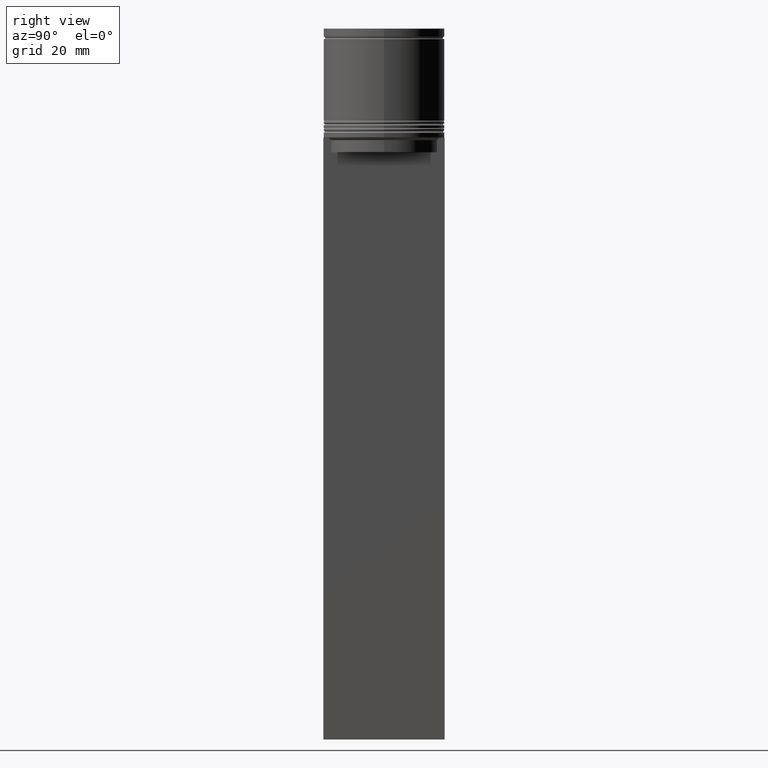
[diagram: clean part render]
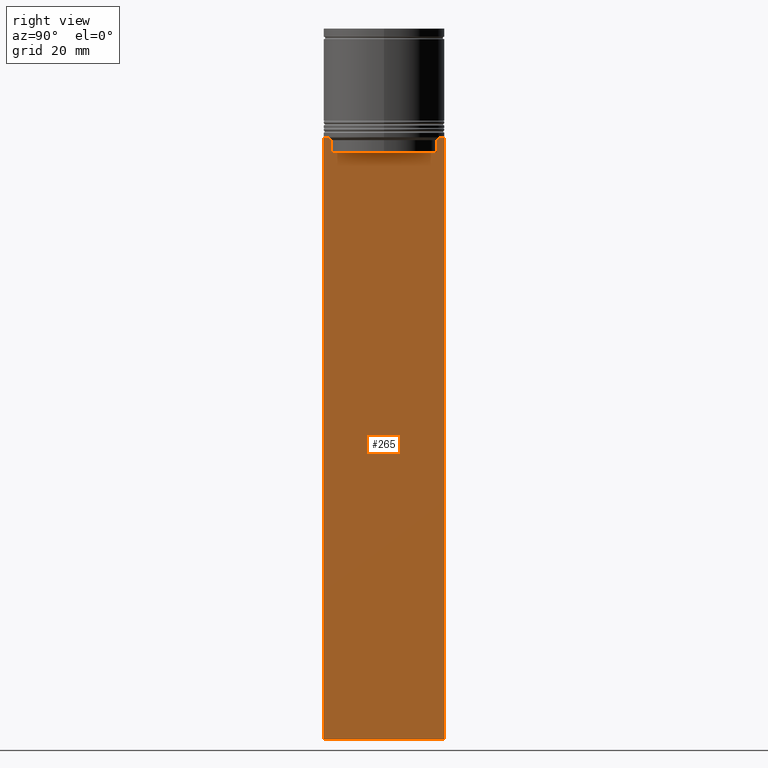
[diagram: same view with one face highlighted and labeled with its STEP entity id]
A machine part, right view. The second image highlights one B-rep face of the part: STEP entity #265.
In plain terms, the highlighted planar face has unit normal (-1, 0, 0).
Its self-contained STEP definition (entity closure, byte-faithful):
#12 = DIRECTION ( 'NONE',  ( 0.000000000000000000, 1.000000000000000000, 0.000000000000000000 ) ) ;
#74 = CARTESIAN_POINT ( 'NONE',  ( 0.5000000000000000000, -12.49999999999999289, -146.5000000000000000 ) ) ;
#92 = EDGE_LOOP ( 'NONE', ( #1369, #1074, #897, #1292, #638, #1140, #94, #900, #1366, #1338, #1872, #295 ) ) ;
#94 = ORIENTED_EDGE ( 'NONE', *, *, #902, .T. ) ;
#96 = DIRECTION ( 'NONE',  ( 0.000000000000000000, 0.000000000000000000, -1.000000000000000000 ) ) ;
#100 = DIRECTION ( 'NONE',  ( 0.000000000000000000, -1.000000000000000000, 0.000000000000000000 ) ) ;
#108 = EDGE_CURVE ( 'NONE', #823, #2001, #1432, .T. ) ;
#117 = CARTESIAN_POINT ( 'NONE',  ( 0.5000000000000000000, -12.49999999999999289, 2.519992006393609874 ) ) ;
#213 = FACE_OUTER_BOUND ( 'NONE', #92, .T. ) ;
#227 = CARTESIAN_POINT ( 'NONE',  ( 0.5000000000000000000, 12.50000000000000711, 2.519992006393609874 ) ) ;
#235 = VERTEX_POINT ( 'NONE', #1020 ) ;
#265 = ADVANCED_FACE ( 'NONE', ( #213 ), #1353, .F. ) ;
#295 = ORIENTED_EDGE ( 'NONE', *, *, #1559, .T. ) ;
#321 = B_SPLINE_CURVE_WITH_KNOTS ( 'NONE', 3,
 ( #1804, #348, #1628, #1317 ),
 .UNSPECIFIED., .F., .F.,
 ( 4, 4 ),
 ( 0.01935560801904635808, 0.02006307108468587813 ),
 .UNSPECIFIED. ) ;
#326 = VECTOR ( 'NONE', #100, 1000.000000000000000 ) ;
#343 = CARTESIAN_POINT ( 'NONE',  ( 0.5000000000000000000, -11.05536450423839412, -22.83333718996392747 ) ) ;
#348 = CARTESIAN_POINT ( 'NONE',  ( 0.5000000000000000000, 11.22219891375843126, -22.66667035472756808 ) ) ;
#355 = VERTEX_POINT ( 'NONE', #957 ) ;
#369 = VERTEX_POINT ( 'NONE', #1426 ) ;
#422 = VECTOR ( 'NONE', #1689, 1000.000000000000000 ) ;
#424 = CARTESIAN_POINT ( 'NONE',  ( 0.5000000000000000000, -12.49999999999999289, -22.50000000000000000 ) ) ;
#430 = EDGE_CURVE ( 'NONE', #1710, #680, #1566, .T. ) ;
#438 = CARTESIAN_POINT ( 'NONE',  ( 0.5000000000000000000, 12.38991525394746596, -22.50000000000000000 ) ) ;
#479 = LINE ( 'NONE', #1125, #627 ) ;
#590 = CARTESIAN_POINT ( 'NONE',  ( 0.5000000000000000000, -11.38902980942626897, -22.50000000000000000 ) ) ;
#627 = VECTOR ( 'NONE', #1775, 1000.000000000000000 ) ;
#638 = ORIENTED_EDGE ( 'NONE', *, *, #1701, .T. ) ;
#680 = VERTEX_POINT ( 'NONE', #74 ) ;
#684 = CARTESIAN_POINT ( 'NONE',  ( 0.5000000000000000000, -12.49999999999999289, -22.50000000000000000 ) ) ;
#713 = LINE ( 'NONE', #1059, #326 ) ;
#746 = LINE ( 'NONE', #1345, #1237 ) ;
#752 = VERTEX_POINT ( 'NONE', #438 ) ;
#765 = DIRECTION ( 'NONE',  ( 0.000000000000000000, 0.000000000000000000, -1.000000000000000000 ) ) ;
#771 = VECTOR ( 'NONE', #1653, 1000.000000000000000 ) ;
#780 = LINE ( 'NONE', #787, #1983 ) ;
#787 = CARTESIAN_POINT ( 'NONE',  ( 0.5000000000000000000, -10.88852607105297032, 0.000000000000000000 ) ) ;
#819 = CARTESIAN_POINT ( 'NONE',  ( 0.5000000000000000000, -12.49999999999999289, -146.5000000000000000 ) ) ;
#823 = VERTEX_POINT ( 'NONE', #1265 ) ;
#897 = ORIENTED_EDGE ( 'NONE', *, *, #1920, .T. ) ;
#900 = ORIENTED_EDGE ( 'NONE', *, *, #1106, .T. ) ;
#902 = EDGE_CURVE ( 'NONE', #2001, #1522, #479, .T. ) ;
#942 = EDGE_CURVE ( 'NONE', #235, #1917, #321, .T. ) ;
#950 = DIRECTION ( 'NONE',  ( -0.000000000000000000, -0.000000000000000000, 1.000000000000000000 ) ) ;
#957 = CARTESIAN_POINT ( 'NONE',  ( 0.5000000000000000000, 10.88852607105296855, -25.50000000000000000 ) ) ;
#989 = CARTESIAN_POINT ( 'NONE',  ( 0.5000000000000000000, -11.38902980942626897, -22.50000000000000000 ) ) ;
#1020 = CARTESIAN_POINT ( 'NONE',  ( 0.5000000000000000000, 11.38902980942626897, -22.50000000000000000 ) ) ;
#1047 = CARTESIAN_POINT ( 'NONE',  ( 0.5000000000000000000, 10.88852607105297032, 0.000000000000000000 ) ) ;
#1049 = CARTESIAN_POINT ( 'NONE',  ( 0.5000000000000000000, -12.49999999999999289, 2.519992006393609874 ) ) ;
#1058 = DIRECTION ( 'NONE',  ( 0.000000000000000000, 0.000000000000000000, 1.000000000000000000 ) ) ;
#1059 = CARTESIAN_POINT ( 'NONE',  ( 0.5000000000000000000, -12.49999999999999289, -22.50000000000000000 ) ) ;
#1074 = ORIENTED_EDGE ( 'NONE', *, *, #942, .T. ) ;
#1106 = EDGE_CURVE ( 'NONE', #1522, #1710, #1651, .T. ) ;
#1125 = CARTESIAN_POINT ( 'NONE',  ( 0.5000000000000000000, -12.49999999999999289, -22.50000000000000000 ) ) ;
#1131 = CARTESIAN_POINT ( 'NONE',  ( 0.5000000000000000000, 12.50000000000000711, -22.50000000000000000 ) ) ;
#1140 = ORIENTED_EDGE ( 'NONE', *, *, #108, .T. ) ;
#1237 = VECTOR ( 'NONE', #1558, 1000.000000000000000 ) ;
#1260 = LINE ( 'NONE', #684, #771 ) ;
#1265 = CARTESIAN_POINT ( 'NONE',  ( 0.5000000000000000000, -10.88852607105297032, -22.99999999999999645 ) ) ;
#1292 = ORIENTED_EDGE ( 'NONE', *, *, #1507, .T. ) ;
#1317 = CARTESIAN_POINT ( 'NONE',  ( 0.5000000000000000000, 10.88852607105297032, -22.99999999999999645 ) ) ;
#1322 = CARTESIAN_POINT ( 'NONE',  ( 0.5000000000000000000, -11.22219891450653151, -22.66667035398018726 ) ) ;
#1338 = ORIENTED_EDGE ( 'NONE', *, *, #1790, .T. ) ;
#1345 = CARTESIAN_POINT ( 'NONE',  ( 0.5000000000000000000, 10.90000000000000924, -25.50000000000000000 ) ) ;
#1353 = PLANE ( 'NONE',  #1670 ) ;
#1366 = ORIENTED_EDGE ( 'NONE', *, *, #430, .T. ) ;
#1369 = ORIENTED_EDGE ( 'NONE', *, *, #1722, .T. ) ;
#1377 = CARTESIAN_POINT ( 'NONE',  ( 0.5000000000000000000, -12.38991525394746596, -22.50000000000000000 ) ) ;
#1426 = CARTESIAN_POINT ( 'NONE',  ( 0.5000000000000000000, -10.88852607105296855, -25.50000000000000000 ) ) ;
#1432 = B_SPLINE_CURVE_WITH_KNOTS ( 'NONE', 3,
 ( #1791, #343, #1322, #989 ),
 .UNSPECIFIED., .F., .F.,
 ( 4, 4 ),
 ( 0.05041323384703231408, 0.05112713601261610619 ),
 .UNSPECIFIED. ) ;
#1492 = EDGE_CURVE ( 'NONE', #1825, #1888, #2026, .T. ) ;
#1499 = DIRECTION ( 'NONE',  ( 0.000000000000000000, -1.000000000000000000, 0.000000000000000000 ) ) ;
#1507 = EDGE_CURVE ( 'NONE', #355, #369, #746, .T. ) ;
#1522 = VERTEX_POINT ( 'NONE', #1377 ) ;
#1534 = DIRECTION ( 'NONE',  ( -1.000000000000000000, 0.000000000000000000, 0.000000000000000000 ) ) ;
#1542 = VECTOR ( 'NONE', #12, 1000.000000000000000 ) ;
#1558 = DIRECTION ( 'NONE',  ( 0.000000000000000000, -1.000000000000000000, 0.000000000000000000 ) ) ;
#1559 = EDGE_CURVE ( 'NONE', #1825, #752, #713, .T. ) ;
#1566 = LINE ( 'NONE', #117, #1773 ) ;
#1628 = CARTESIAN_POINT ( 'NONE',  ( 0.5000000000000000000, 11.05536450345590715, -22.83333719074559554 ) ) ;
#1651 = LINE ( 'NONE', #424, #1678 ) ;
#1653 = DIRECTION ( 'NONE',  ( 0.000000000000000000, -1.000000000000000000, 0.000000000000000000 ) ) ;
#1670 = AXIS2_PLACEMENT_3D ( 'NONE', #1049, #1534, #1058 ) ;
#1678 = VECTOR ( 'NONE', #1499, 1000.000000000000000 ) ;
#1683 = VECTOR ( 'NONE', #96, 1000.000000000000000 ) ;
#1689 = DIRECTION ( 'NONE',  ( 0.000000000000000000, 0.000000000000000000, -1.000000000000000000 ) ) ;
#1701 = EDGE_CURVE ( 'NONE', #369, #823, #780, .T. ) ;
#1704 = CARTESIAN_POINT ( 'NONE',  ( 0.5000000000000000000, 10.88852607105297032, -22.99999999999999645 ) ) ;
#1710 = VERTEX_POINT ( 'NONE', #1758 ) ;
#1722 = EDGE_CURVE ( 'NONE', #752, #235, #1260, .T. ) ;
#1758 = CARTESIAN_POINT ( 'NONE',  ( 0.5000000000000000000, -12.49999999999999289, -22.50000000000000000 ) ) ;
#1773 = VECTOR ( 'NONE', #765, 1000.000000000000000 ) ;
#1775 = DIRECTION ( 'NONE',  ( 0.000000000000000000, -1.000000000000000000, 0.000000000000000000 ) ) ;
#1790 = EDGE_CURVE ( 'NONE', #680, #1888, #1820, .T. ) ;
#1791 = CARTESIAN_POINT ( 'NONE',  ( 0.5000000000000000000, -10.88852607105297032, -22.99999999999999645 ) ) ;
#1804 = CARTESIAN_POINT ( 'NONE',  ( 0.5000000000000000000, 11.38902980942626897, -22.50000000000000000 ) ) ;
#1820 = LINE ( 'NONE', #819, #1542 ) ;
#1825 = VERTEX_POINT ( 'NONE', #1131 ) ;
#1863 = LINE ( 'NONE', #1047, #1683 ) ;
#1872 = ORIENTED_EDGE ( 'NONE', *, *, #1492, .F. ) ;
#1888 = VERTEX_POINT ( 'NONE', #2009 ) ;
#1917 = VERTEX_POINT ( 'NONE', #1704 ) ;
#1920 = EDGE_CURVE ( 'NONE', #1917, #355, #1863, .T. ) ;
#1983 = VECTOR ( 'NONE', #950, 1000.000000000000000 ) ;
#2001 = VERTEX_POINT ( 'NONE', #590 ) ;
#2009 = CARTESIAN_POINT ( 'NONE',  ( 0.5000000000000000000, 12.50000000000000711, -146.5000000000000000 ) ) ;
#2026 = LINE ( 'NONE', #227, #422 ) ;